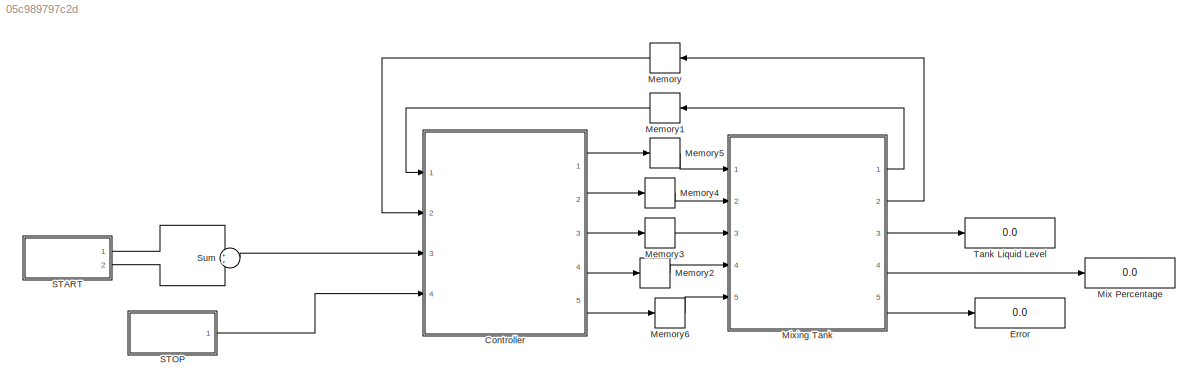
MODEL slx_05c989797c2d
KIND model
CONFIG AbsTol = auto
CONFIG EnableMultiTasking = on
CONFIG FixedStep = 1
CONFIG MaxStep = auto
CONFIG MinStep = auto
CONFIG RelTol = 1e-3
CONFIG SampleTimeConstraint = Unconstrained
CONFIG Solver = FixedStepDiscrete
CONFIG SolverName = FixedStepDiscrete
CONFIG StartTime = 0.0
CONFIG StopTime = 30.0
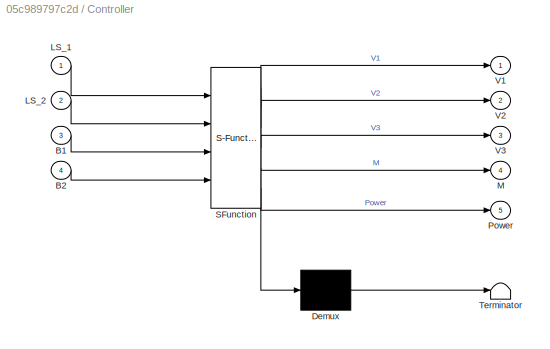
BLOCK [SubSystem] Controller
  BlockKeywords = __PRM__SERIALIZED__DATA__:Stateflow Chart,Stateflow Diagram
  ErrorFcn = Stateflow.Translate.translate
  PermitHierarchicalResolution = ExplicitOnly
  Ports = [4, 5]
  RequestExecContextInheritance = off
  SFBlockType = Chart
  TreatAsAtomicUnit = on
BLOCK [Demux] Controller/ Demux 
  Outputs = 1
  Ports = [1, 1]
BLOCK [S-Function] Controller/ SFunction 
  EnableBusSupport = on
  FunctionName = sf_sfun
  PortCounts = [4 6]
  Ports = [4, 6]
  SFcnIsStateOwnerBlock = off
  SFunctionDeploymentMode = off
  Tag = Stateflow S-Function 1
BLOCK [Terminator] Controller/ Terminator 
BLOCK [Inport] Controller/B1
  IconDisplay = Port number
  Port = 3
BLOCK [Inport] Controller/B2
  IconDisplay = Port number
  Port = 4
BLOCK [Inport] Controller/LS_1
  IconDisplay = Port number
BLOCK [Inport] Controller/LS_2
  IconDisplay = Port number
  Port = 2
BLOCK [Outport] Controller/M
  IconDisplay = Port number
  Port = 4
BLOCK [Outport] Controller/Power
  IconDisplay = Port number
  Port = 5
BLOCK [Outport] Controller/V1
  IconDisplay = Port number
BLOCK [Outport] Controller/V2
  IconDisplay = Port number
  Port = 2
BLOCK [Outport] Controller/V3
  IconDisplay = Port number
  Port = 3
BLOCK [Display] Error
  Decimation = 1
  Ports = [1]
BLOCK [Memory] Memory
BLOCK [Memory] Memory1
BLOCK [Memory] Memory2
BLOCK [Memory] Memory3
BLOCK [Memory] Memory4
BLOCK [Memory] Memory5
BLOCK [Memory] Memory6
BLOCK [Display] Mix Percentage
  Decimation = 1
  Ports = [1]
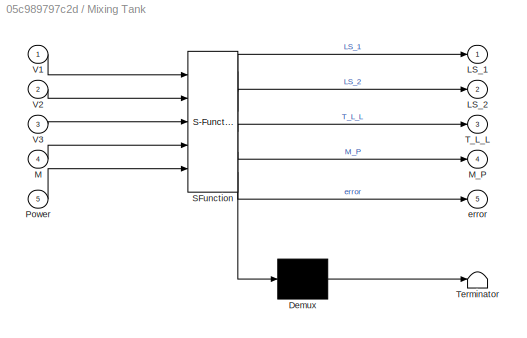
BLOCK [SubSystem] Mixing Tank
  ErrorFcn = Stateflow.Translate.translate
  PermitHierarchicalResolution = ExplicitOnly
  Ports = [5, 5]
  RequestExecContextInheritance = off
  SFBlockType = Chart
  TreatAsAtomicUnit = on
BLOCK [Demux] Mixing Tank/ Demux 
  Outputs = 1
  Ports = [1, 1]
BLOCK [S-Function] Mixing Tank/ SFunction 
  EnableBusSupport = on
  FunctionName = sf_sfun
  PortCounts = [5 6]
  Ports = [5, 6]
  SFcnIsStateOwnerBlock = off
  SFunctionDeploymentMode = off
  Tag = Stateflow S-Function 3
BLOCK [Terminator] Mixing Tank/ Terminator 
BLOCK [Outport] Mixing Tank/LS_1
  IconDisplay = Port number
BLOCK [Outport] Mixing Tank/LS_2
  IconDisplay = Port number
  Port = 2
BLOCK [Inport] Mixing Tank/M
  IconDisplay = Port number
  Port = 4
BLOCK [Outport] Mixing Tank/M_P
  IconDisplay = Port number
  Port = 4
BLOCK [Inport] Mixing Tank/Power
  IconDisplay = Port number
  Port = 5
BLOCK [Outport] Mixing Tank/T_L_L
  IconDisplay = Port number
  Port = 3
BLOCK [Inport] Mixing Tank/V1
  IconDisplay = Port number
BLOCK [Inport] Mixing Tank/V2
  IconDisplay = Port number
  Port = 2
BLOCK [Inport] Mixing Tank/V3
  IconDisplay = Port number
  Port = 3
BLOCK [Outport] Mixing Tank/error
  IconDisplay = Port number
  Port = 5
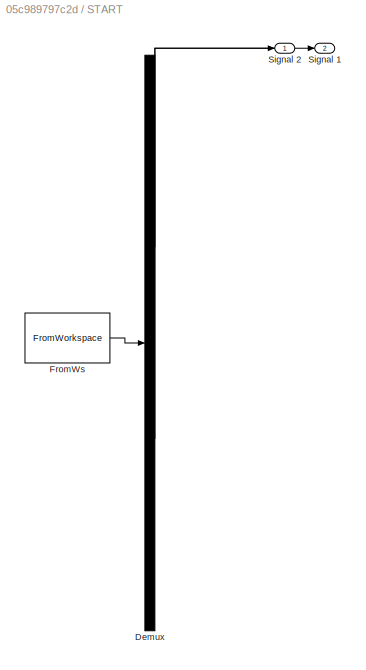
BLOCK [SubSystem] START
  ClipboardFcn = sigbuilder_block('clipboard');
  CloseFcn = sigbuilder_block('close');
  ContinueFcn = sigbuilder_block('continue');
  CopyFcn = sigbuilder_block('copy');
  DeleteFcn = sigbuilder_block('delete');
  LoadFcn = sigbuilder_block('load');
  MaskHideContents = on
  ModelCloseFcn = sigbuilder_block('modelClose');
  NameChangeFcn = sigbuilder_block('namechange');
  OpenFcn = sigbuilder_block('open',[117.75 66 628.5 342.75 ]);
  PauseFcn = sigbuilder_block('pause');
  Ports = [0, 2]
  PreSaveFcn = sigbuilder_block('preSave');
  RequestExecContextInheritance = off
  StartFcn = sigbuilder_block('start');
  StopFcn = sigbuilder_block('stop');
  Tag = STV Subsys
BLOCK [Demux] START/Demux
  Outputs = 2
  Ports = [1, 2]
  Tag = STV Demux
BLOCK [FromWorkspace] START/FromWs
  SampleTime = 0
  Tag = STV FromWs
  VariableName = tuvar
  ZeroCross = on
BLOCK [Outport] START/Signal 1
  IconDisplay = Port number
  Port = 2
  Tag = STV Outport
BLOCK [Outport] START/Signal 2
  IconDisplay = Port number
  Tag = STV Outport
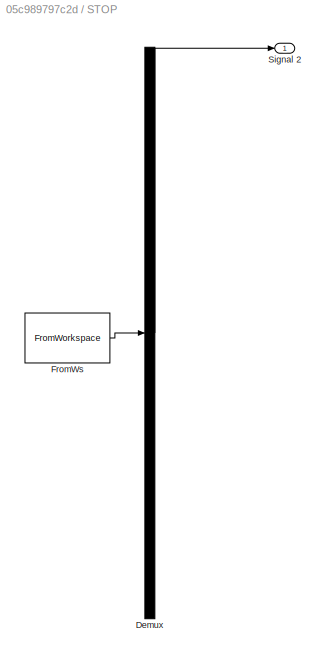
BLOCK [SubSystem] STOP
  ClipboardFcn = sigbuilder_block('clipboard');
  CloseFcn = sigbuilder_block('close');
  ContinueFcn = sigbuilder_block('continue');
  CopyFcn = sigbuilder_block('copy');
  DeleteFcn = sigbuilder_block('delete');
  LoadFcn = sigbuilder_block('load');
  MaskHideContents = on
  ModelCloseFcn = sigbuilder_block('modelClose');
  NameChangeFcn = sigbuilder_block('namechange');
  OpenFcn = sigbuilder_block('open',[433.5 124.5 558 353.25 ]);
  PauseFcn = sigbuilder_block('pause');
  Ports = [0, 1]
  PreSaveFcn = sigbuilder_block('preSave');
  RequestExecContextInheritance = off
  StartFcn = sigbuilder_block('start');
  StopFcn = sigbuilder_block('stop');
  Tag = STV Subsys
BLOCK [Demux] STOP/Demux
  Outputs = 1
  Ports = [1, 1]
  Tag = STV Demux
BLOCK [FromWorkspace] STOP/FromWs
  SampleTime = 0
  Tag = STV FromWs
  VariableName = tuvar
  ZeroCross = on
BLOCK [Outport] STOP/Signal 2
  IconDisplay = Port number
  Tag = STV Outport
BLOCK [Sum] Sum
  IconShape = round
  InputSameDT = off
  OutDataTypeStr = Inherit: Inherit via internal rule
  Ports = [2, 1]
  SaturateOnIntegerOverflow = off
BLOCK [Display] Tank Liquid Level
  Decimation = 1
  Ports = [1]
LINE Controller:1 -> Memory5:1
LINE Controller:2 -> Memory4:1
LINE Controller:3 -> Memory3:1
LINE Controller:4 -> Memory2:1
LINE Controller:5 -> Memory6:1
LINE Memory1:1 -> Controller:1
LINE Memory2:1 -> Mixing Tank:4
LINE Memory3:1 -> Mixing Tank:3
LINE Memory4:1 -> Mixing Tank:2
LINE Memory5:1 -> Mixing Tank:1
LINE Memory6:1 -> Mixing Tank:5
LINE Memory:1 -> Controller:2
LINE Mixing Tank:1 -> Memory1:1
LINE Mixing Tank:2 -> Memory:1
LINE Mixing Tank:3 -> Tank Liquid Level:1
LINE Mixing Tank:4 -> Mix Percentage:1
LINE Mixing Tank:5 -> Error:1
LINE START:1 -> Sum:1
LINE START:2 -> Sum:2
LINE STOP:1 -> Controller:4
LINE Sum:1 -> Controller:3
CHART Controller states=5 transitions=12
  STATE_LABEL 'init\n\n% Entry\nentry:\nV1=0;\nV2=0;\nV3=0;\nM=0;\nPower=0;\nsus=0;\n% During\nduring:\nV1=0;\nV2=0;\nV3=0;\nM=0;\nPower=0;\n'
  STATE_LABEL 'Stopped\n% Entry\nentry:\nV1=0;\nV2=0;\nV3=0;\nM=0;\nPower=1;\n% During\nV1=0;\nV2=0;\nV3=0;\nM=0;\nPower=1;\n'
  STATE_LABEL 'Filling\n% Entry\nentry:\nV1=1;\nV2=1;\nV3=0;\nM=0;\nPower=1;\nsus= 1;\n% During\nduring:\nV1=1;\nV2=1;\nV3=0;\nM=0;\nPower=1;\n'
  STATE_LABEL 'Draining\n% Entry\nentry:\nV1=0;\nV2=0;\nV3=1;\nM=0;\nsus=3;\nPower=1;\n% During\nduring:\nV1=0;\nV2=0;\nV3=1;\nM=0;\nPower=1;\n'
  STATE_LABEL 'Mixing\n% Entry\nentry:\nV1= 0;\nV2= 0;\nV3=0;\nM= 1;\nsus=2;\nT_10=0;\nPower=1;\n% During\nduring:\nV1= 0;\nV2= 0;\nV3=0;\nM= 1;\nT_10= T_10+2;\nPower=1;'
CHART Mixing Tank states=6 transitions=67
  STATE_LABEL 'eval_valves'
  STATE_LABEL '% Valve 1'
  STATE_LABEL '[V1 == 1]'
  STATE_LABEL '{valve(1);}'
  STATE_LABEL '% Valve 2'
  STATE_LABEL '[V2 == 1]'
  STATE_LABEL '{valve(1);}'
  STATE_LABEL '% Valve 3'
  STATE_LABEL '[V3 == 1]'
  STATE_LABEL '{valve(-1);}'
  STATE_LABEL 'Off'
  STATE_LABEL 'valve(op)'
  STATE_LABEL '% Perform valve operation'
  STATE_LABEL '[op < 0]'
  STATE_LABEL '{T_L_L= T_L_L+1;}'
  STATE_LABEL '{T_L_L= T_L_L-1;}'
  STATE_LABEL '[T_L_L<0]'
  STATE_LABEL '{T_L_L= 0;}'
  STATE_LABEL '[T_L_L> 100]'
  STATE_LABEL '{T_L_L= 100;}'
  STATE_LABEL 'eval_mixer'
  STATE_LABEL "% If there's no liquid to mix, raise an error"
  STATE_LABEL '[T_L_L >=  0]'
  STATE_LABEL '% Mixer'
  STATE_LABEL '{error= 1;}'
  STATE_LABEL '[M == 1]'
  STATE_LABEL '{M_P= M_P+1.5;}'
  STATE_LABEL '% Limit mixer percentage'
  STATE_LABEL '[M_P > 100]'
  STATE_LABEL '{M_P= 100;}'
  STATE_LABEL 'eval_output'
  STATE_LABEL '% Empty Tank'
  STATE_LABEL '[T_L_L < 10]'
  STATE_LABEL '{LS_1= 0;}'
  STATE_LABEL '% Full Tank'
  STATE_LABEL '[T_L_L > 95]'
  STATE_LABEL '{LS_2= 1;}'
  STATE_LABEL 'On\n% Entry\nentry:\n% Set all outputs defualts\nLS_1= 1;\nLS_2= 0;\nT_L_L= 0;\nM_P= 0;\n% During\nduring:\neval_valves\neval_mixer\neval_output'
